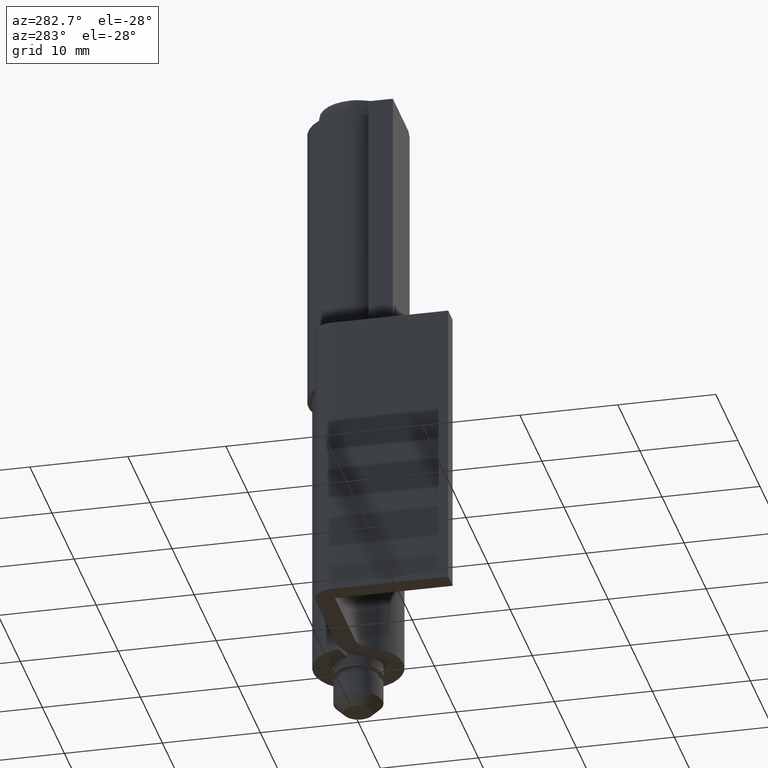
[diagram: clean part render]
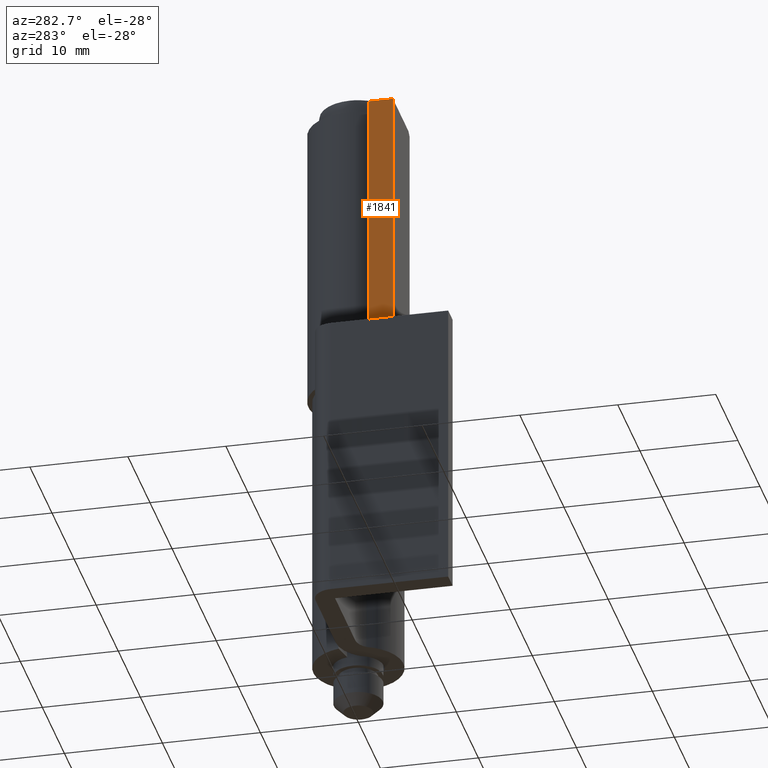
[diagram: same view with one face highlighted and labeled with its STEP entity id]
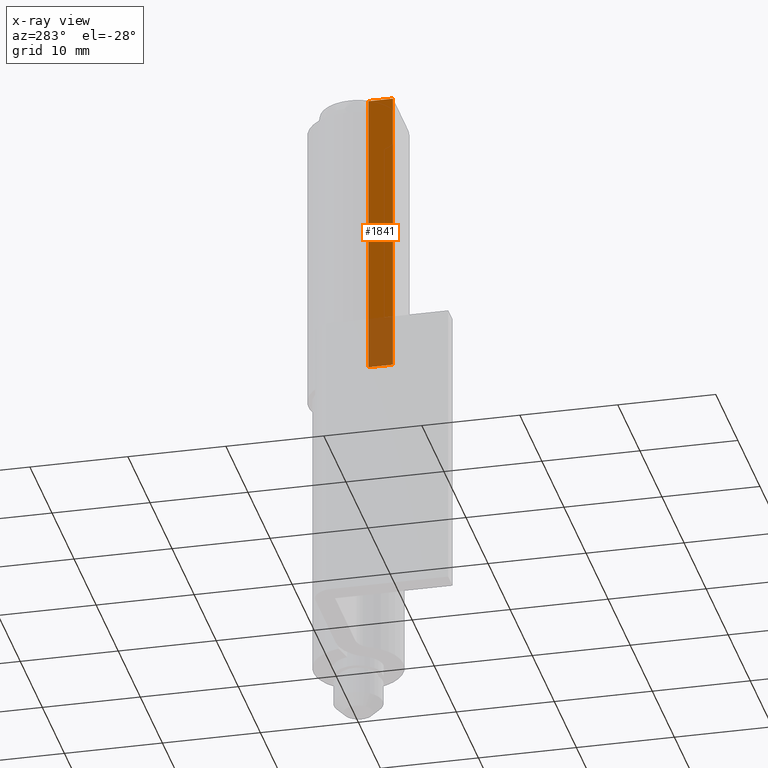
[diagram: x-ray of the same camera — body ghosted, the highlighted face saturated]
A machine part, auxiliary view. The second image highlights one B-rep face of the part: STEP entity #1841.
The next image is the same camera in x-ray: the body ghosted, the highlighted face saturated — about 18% of this face is hidden behind the body in this view.
In plain terms, the highlighted face is a freeform B-spline surface patch.
Its self-contained STEP definition (entity closure, byte-faithful):
#1561=CARTESIAN_POINT('',(-7.0,-2.599976000000000,64.999992000000006));
#1562=VERTEX_POINT('',#1561);
#1563=CARTESIAN_POINT('',(-7.0,-5.099975999999910,64.999992000000006));
#1564=VERTEX_POINT('',#1563);
#1565=CARTESIAN_POINT('',(-7.0,-2.599976000000000,64.999992000000006));
#1566=CARTESIAN_POINT('',(-7.0,-5.099975999999910,64.999992000000006));
#1567=QUASI_UNIFORM_CURVE('',1,(#1565,#1566),.UNSPECIFIED.,.F.,.U.);
#1568=EDGE_CURVE('',#1562,#1564,#1567,.T.);
#1639=CARTESIAN_POINT('',(-7.0,-2.599976000000000,34.999991999999949));
#1640=VERTEX_POINT('',#1639);
#1641=CARTESIAN_POINT('',(-7.0,-5.099975999999910,34.999991999999949));
#1642=VERTEX_POINT('',#1641);
#1643=CARTESIAN_POINT('',(-7.0,-2.599976000000000,34.999991999999949));
#1644=CARTESIAN_POINT('',(-7.0,-5.099975999999910,34.999991999999949));
#1645=QUASI_UNIFORM_CURVE('',1,(#1643,#1644),.UNSPECIFIED.,.F.,.U.);
#1646=EDGE_CURVE('',#1640,#1642,#1645,.T.);
#1724=CARTESIAN_POINT('',(-7.0,-2.599976000000000,34.999991999999949));
#1725=CARTESIAN_POINT('',(-7.0,-2.599976000000000,64.999992000000006));
#1726=QUASI_UNIFORM_CURVE('',1,(#1724,#1725),.UNSPECIFIED.,.F.,.U.);
#1727=EDGE_CURVE('',#1640,#1562,#1726,.T.);
#1820=CARTESIAN_POINT('',(-7.0,-5.099975999999910,34.999991999999949));
#1821=CARTESIAN_POINT('',(-7.0,-5.099975999999910,64.999992000000006));
#1822=QUASI_UNIFORM_CURVE('',1,(#1820,#1821),.UNSPECIFIED.,.F.,.U.);
#1823=EDGE_CURVE('',#1642,#1564,#1822,.T.);
#1830=CARTESIAN_POINT('',(-7.0,-2.475101051781911,33.501492339764297));
#1831=CARTESIAN_POINT('',(-7.0,-5.224851059976707,33.501492339764297));
#1832=CARTESIAN_POINT('',(-7.0,-2.475101051781911,66.498492733119278));
#1833=CARTESIAN_POINT('',(-7.0,-5.224851059976707,66.498492733119278));
#1834=B_SPLINE_SURFACE_WITH_KNOTS('',1,1,((#1830,#1832),(#1831,#1833)),.UNSPECIFIED.,.F.,.F.,.U.,(2,2),(2,2),(0.0,2.749750008194796),(0.0,32.997000393354980),.UNSPECIFIED.);
#1835=ORIENTED_EDGE('',*,*,#1568,.F.);
#1836=ORIENTED_EDGE('',*,*,#1727,.F.);
#1837=ORIENTED_EDGE('',*,*,#1646,.T.);
#1838=ORIENTED_EDGE('',*,*,#1823,.T.);
#1839=EDGE_LOOP('',(#1835,#1836,#1837,#1838));
#1840=FACE_OUTER_BOUND('',#1839,.T.);
#1841=ADVANCED_FACE('',(#1840),#1834,.T.);